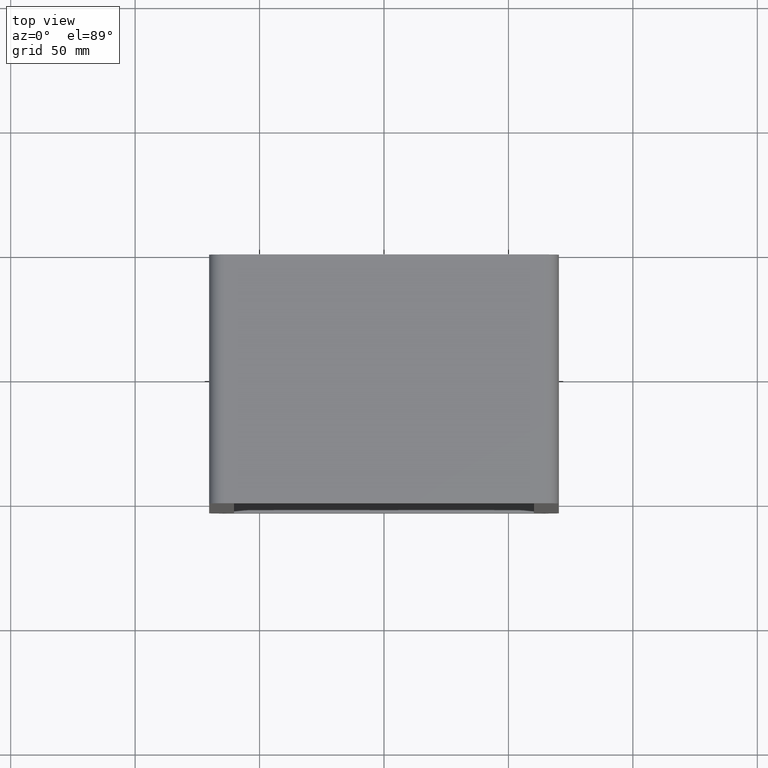
[diagram: clean part render]
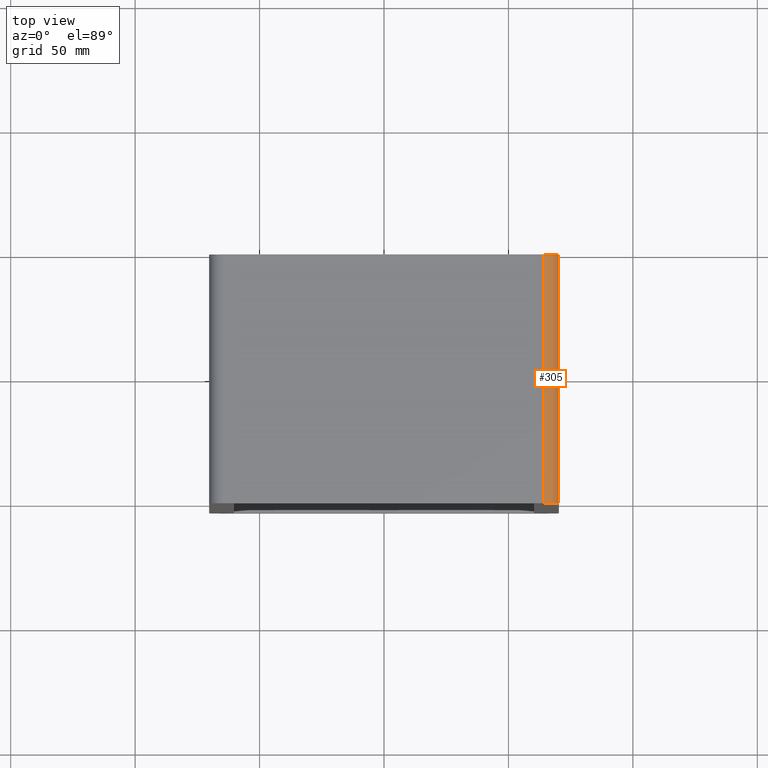
[diagram: same view with one face highlighted and labeled with its STEP entity id]
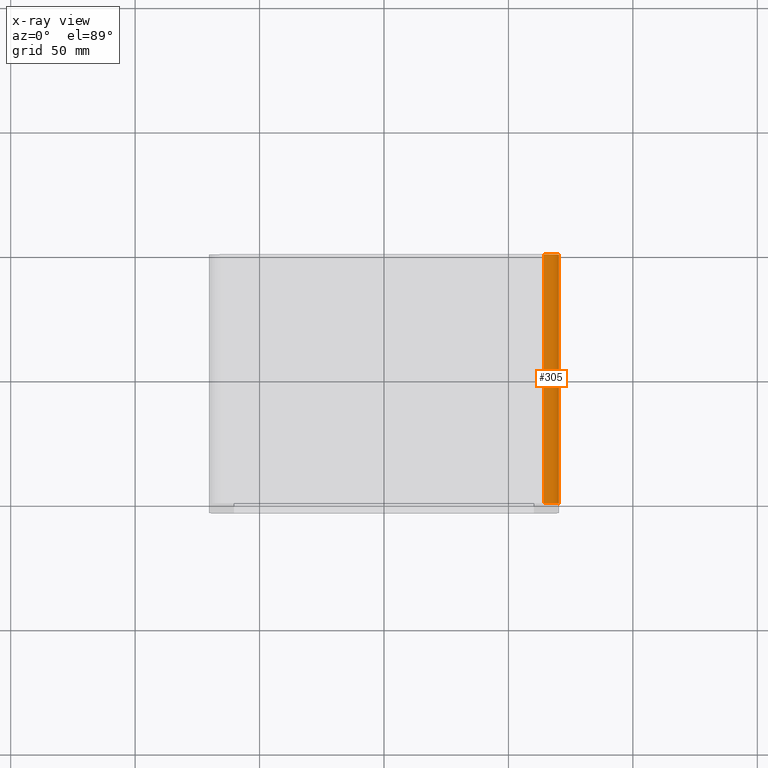
[diagram: x-ray of the same camera — body ghosted, the highlighted face saturated]
A machine part, top view. The second image highlights one B-rep face of the part: STEP entity #305.
The next image is the same camera in x-ray: the body ghosted, the highlighted face saturated — about 0% of this face is hidden behind the body in this view.
In plain terms, the highlighted cylindrical surface (edge-blend (fillet) strip) has radius 6 mm, axis along (0, 1, 0).
Its self-contained STEP definition (entity closure, byte-faithful):
#199=CARTESIAN_POINT('',(70.25,-3.0,112.99999999999997));
#200=VERTEX_POINT('',#199);
#207=CARTESIAN_POINT('',(64.25,-3.0,118.99999999999999));
#208=VERTEX_POINT('',#207);
#209=CARTESIAN_POINT('',(64.25,-3.0,112.99999999999997));
#210=DIRECTION('',(0.0,-1.0,0.0));
#211=DIRECTION('',(0.0,0.0,1.0));
#212=AXIS2_PLACEMENT_3D('',#209,#210,#211);
#213=CIRCLE('',#212,6.000000000000001);
#214=EDGE_CURVE('',#200,#208,#213,.T.);
#274=CARTESIAN_POINT('',(64.25,0.0,112.99999999999997));
#275=DIRECTION('',(0.0,1.0,0.0));
#276=DIRECTION('',(0.0,0.0,1.0));
#277=AXIS2_PLACEMENT_3D('',#274,#275,#276);
#278=CYLINDRICAL_SURFACE('',#277,6.000000000000001);
#279=CARTESIAN_POINT('',(70.25,97.0,112.99999999999997));
#280=VERTEX_POINT('',#279);
#281=CARTESIAN_POINT('',(70.25,97.0,112.99999999999997));
#282=DIRECTION('',(0.0,-1.0,0.0));
#283=VECTOR('',#282,100.0);
#284=LINE('',#281,#283);
#285=EDGE_CURVE('',#280,#200,#284,.T.);
#286=ORIENTED_EDGE('',*,*,#285,.F.);
#287=CARTESIAN_POINT('',(64.25,97.0,118.99999999999999));
#288=VERTEX_POINT('',#287);
#289=CARTESIAN_POINT('',(64.25,97.0,112.99999999999997));
#290=DIRECTION('',(0.0,1.0,0.0));
#291=DIRECTION('',(0.0,0.0,1.0));
#292=AXIS2_PLACEMENT_3D('',#289,#290,#291);
#293=CIRCLE('',#292,6.000000000000001);
#294=EDGE_CURVE('',#288,#280,#293,.T.);
#295=ORIENTED_EDGE('',*,*,#294,.F.);
#296=CARTESIAN_POINT('',(64.25,-3.0,118.99999999999999));
#297=DIRECTION('',(0.0,1.0,0.0));
#298=VECTOR('',#297,100.0);
#299=LINE('',#296,#298);
#300=EDGE_CURVE('',#208,#288,#299,.T.);
#301=ORIENTED_EDGE('',*,*,#300,.F.);
#302=ORIENTED_EDGE('',*,*,#214,.F.);
#303=EDGE_LOOP('',(#286,#295,#301,#302));
#304=FACE_OUTER_BOUND('',#303,.T.);
#305=ADVANCED_FACE('',(#304),#278,.T.);